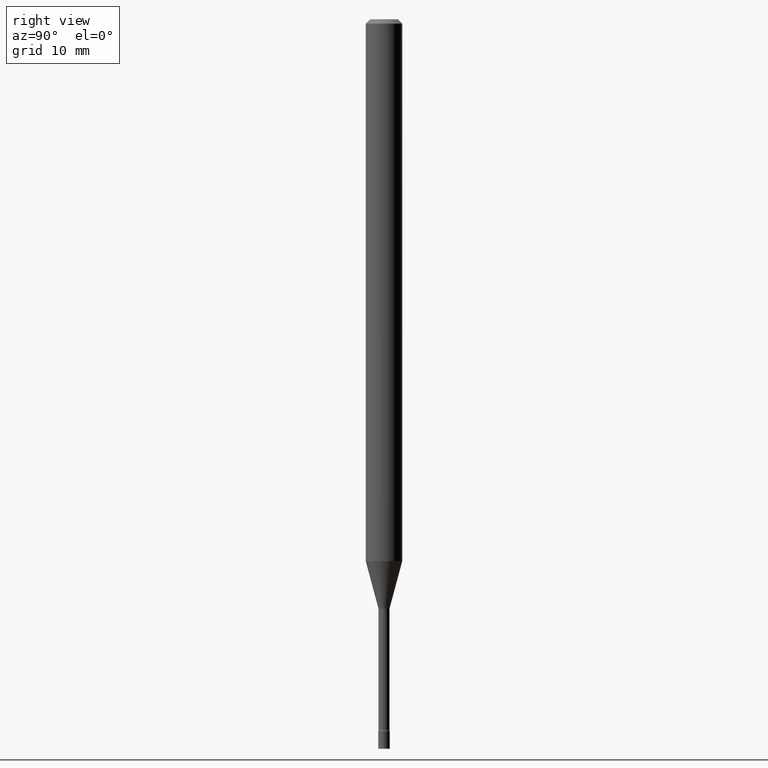
[diagram: clean part render]
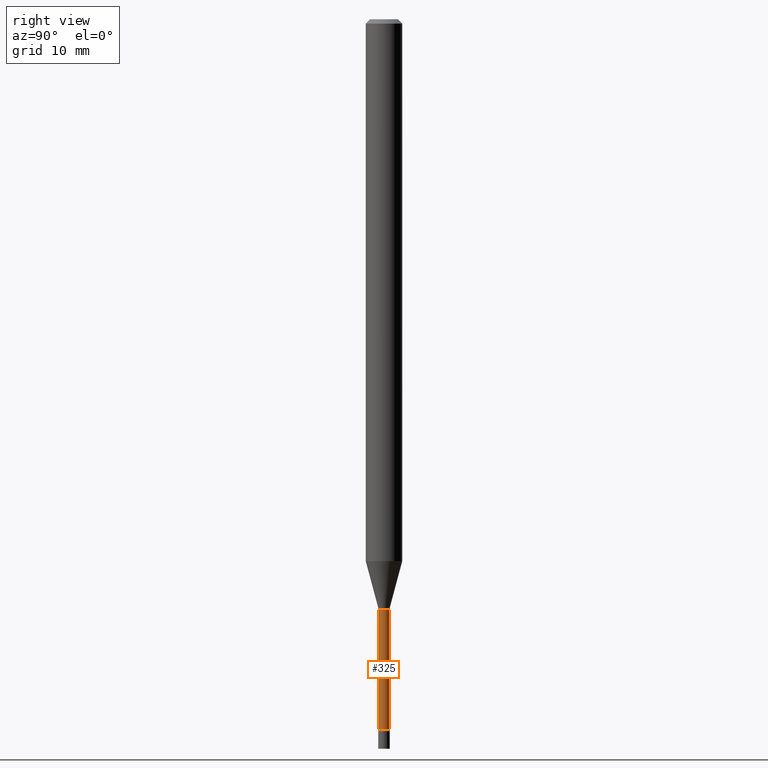
[diagram: same view with one face highlighted and labeled with its STEP entity id]
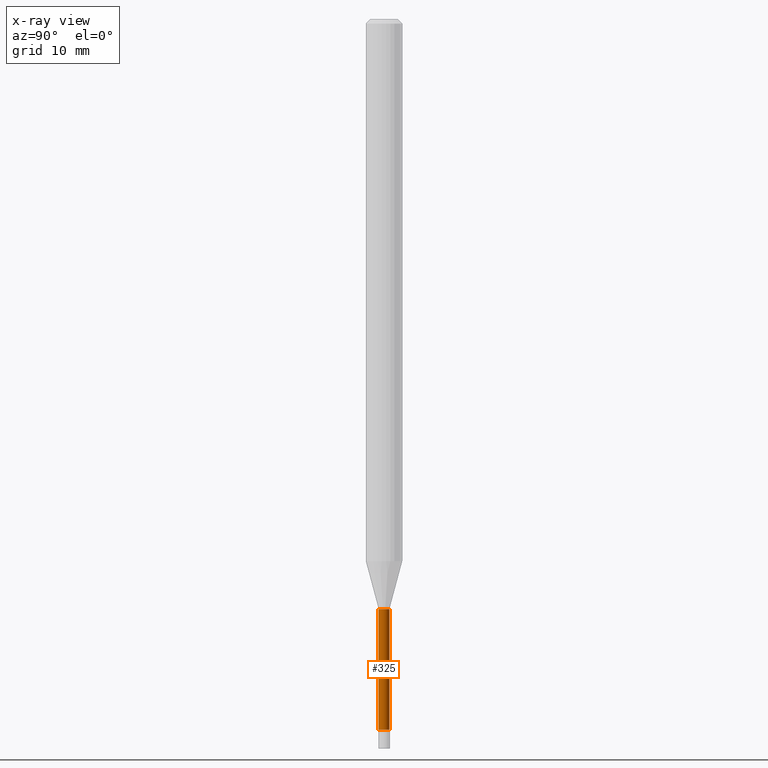
[diagram: x-ray of the same camera — body ghosted, the highlighted face saturated]
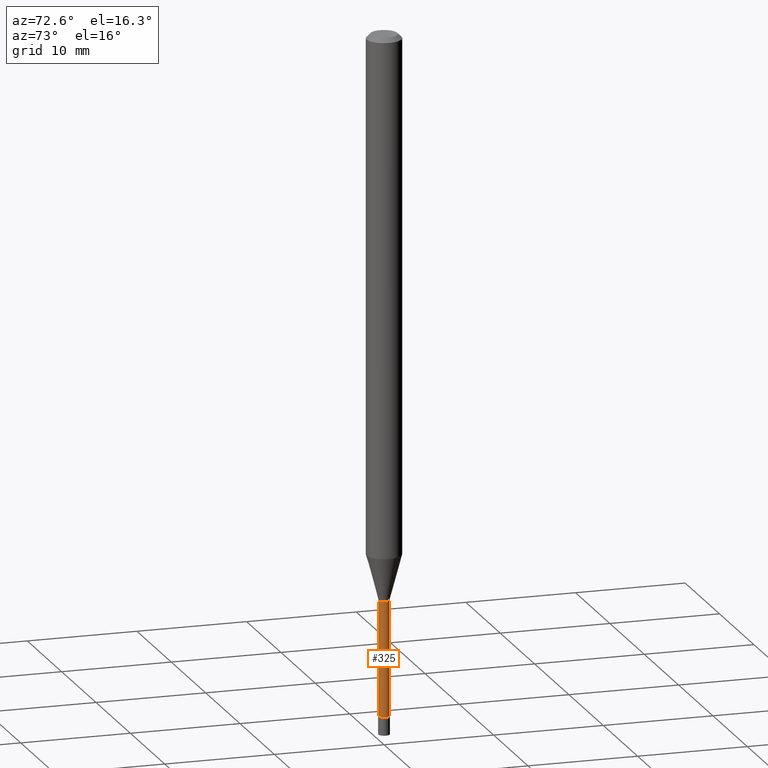
[diagram: same view with one face highlighted and labeled with its STEP entity id]
A machine part, right view. The second image highlights one B-rep face of the part: STEP entity #325.
The next image is the same camera in x-ray: the body ghosted, the highlighted face saturated — about 0% of this face is hidden behind the body in this view.
A second angle (auxiliary view) of the same face is appended — the face is thin or edge-on in the first view.
In plain terms, the highlighted cylindrical surface (edge-blend (fillet) strip) has radius 0.4775 mm, axis along (-0, 0, 1).
Its self-contained STEP definition (entity closure, byte-faithful):
#5 = VECTOR ( 'NONE', #243, 39.37007874015748143 ) ;
#11 = CARTESIAN_POINT ( 'NONE',  ( 1.335820343228990867E-16, 0.01880000000000003543, -6.564103883140037808E-17 ) ) ;
#29 = DIRECTION ( 'NONE',  ( -2.445424618103204141E-29, 3.491544618691502502E-15, 1.000000000000000000 ) ) ;
#30 = CARTESIAN_POINT ( 'NONE',  ( 1.378452907375191717E-16, 0.01879999999999157692, -2.434121224617320944 ) ) ;
#43 = DIRECTION ( 'NONE',  ( -2.445424618103204141E-29, 3.491544618691502502E-15, 1.000000000000000000 ) ) ;
#44 = EDGE_LOOP ( 'NONE', ( #395, #110, #388, #226 ) ) ;
#50 = VERTEX_POINT ( 'NONE', #393 ) ;
#68 = VECTOR ( 'NONE', #410, 39.37007874015748143 ) ;
#72 = CARTESIAN_POINT ( 'NONE',  ( -1.312796983404523498E-16, -0.01880000000000706106, -2.021974787463811207 ) ) ;
#78 = DIRECTION ( 'NONE',  ( -6.982962677686265922E-15, -1.000000000000000000, 0.000000000000000000 ) ) ;
#101 = CARTESIAN_POINT ( 'NONE',  ( 0.000000000000000000, 0.000000000000000000, 0.000000000000000000 ) ) ;
#110 = ORIENTED_EDGE ( 'NONE', *, *, #447, .T. ) ;
#122 = VERTEX_POINT ( 'NONE', #130 ) ;
#130 = CARTESIAN_POINT ( 'NONE',  ( 1.335820343229585471E-16, 0.01879999999999294041, -2.021974787463811207 ) ) ;
#147 = LINE ( 'NONE', #316, #68 ) ;
#161 = CARTESIAN_POINT ( 'NONE',  ( 5.952459966126715215E-29, -8.498842863055376758E-15, -2.434121224617320944 ) ) ;
#213 = CIRCLE ( 'NONE', #499, 0.01880000000000000074 ) ;
#226 = ORIENTED_EDGE ( 'NONE', *, *, #496, .F. ) ;
#243 = DIRECTION ( 'NONE',  ( -2.445424618103204141E-29, 3.491544618691502896E-15, 1.000000000000000000 ) ) ;
#279 = CARTESIAN_POINT ( 'NONE',  ( 4.944586922447996787E-29, -7.059815188299163512E-15, -2.021974787463811207 ) ) ;
#280 = CYLINDRICAL_SURFACE ( 'NONE', #381, 0.01880000000000003543 ) ;
#309 = CIRCLE ( 'NONE', #493, 0.01880000000000007360 ) ;
#316 = CARTESIAN_POINT ( 'NONE',  ( -1.312796983405020727E-16, -0.01880000000000003543, 6.564103883140037808E-17 ) ) ;
#324 = VERTEX_POINT ( 'NONE', #72 ) ;
#325 = ADVANCED_FACE ( 'NONE', ( #448 ), #280, .T. ) ;
#381 = AXIS2_PLACEMENT_3D ( 'NONE', #101, #29, #442 ) ;
#388 = ORIENTED_EDGE ( 'NONE', *, *, #500, .F. ) ;
#393 = CARTESIAN_POINT ( 'NONE',  ( -1.312796983404428095E-16, -0.01880000000000857374, -2.434121224617320944 ) ) ;
#395 = ORIENTED_EDGE ( 'NONE', *, *, #459, .T. ) ;
#397 = DIRECTION ( 'NONE',  ( -2.445424618103204141E-29, 3.491544618691502502E-15, 1.000000000000000000 ) ) ;
#410 = DIRECTION ( 'NONE',  ( -2.445424618103204141E-29, 3.491544618691502896E-15, 1.000000000000000000 ) ) ;
#442 = DIRECTION ( 'NONE',  ( -6.982962677686267499E-15, -1.000000000000000000, 3.491544618691502896E-15 ) ) ;
#447 = EDGE_CURVE ( 'NONE', #484, #122, #490, .T. ) ;
#448 = FACE_OUTER_BOUND ( 'NONE', #44, .T. ) ;
#450 = DIRECTION ( 'NONE',  ( -6.982962677686265922E-15, -1.000000000000000000, 0.000000000000000000 ) ) ;
#459 = EDGE_CURVE ( 'NONE', #50, #484, #309, .T. ) ;
#484 = VERTEX_POINT ( 'NONE', #30 ) ;
#490 = LINE ( 'NONE', #11, #5 ) ;
#493 = AXIS2_PLACEMENT_3D ( 'NONE', #161, #43, #78 ) ;
#496 = EDGE_CURVE ( 'NONE', #50, #324, #147, .T. ) ;
#499 = AXIS2_PLACEMENT_3D ( 'NONE', #279, #397, #450 ) ;
#500 = EDGE_CURVE ( 'NONE', #324, #122, #213, .T. ) ;